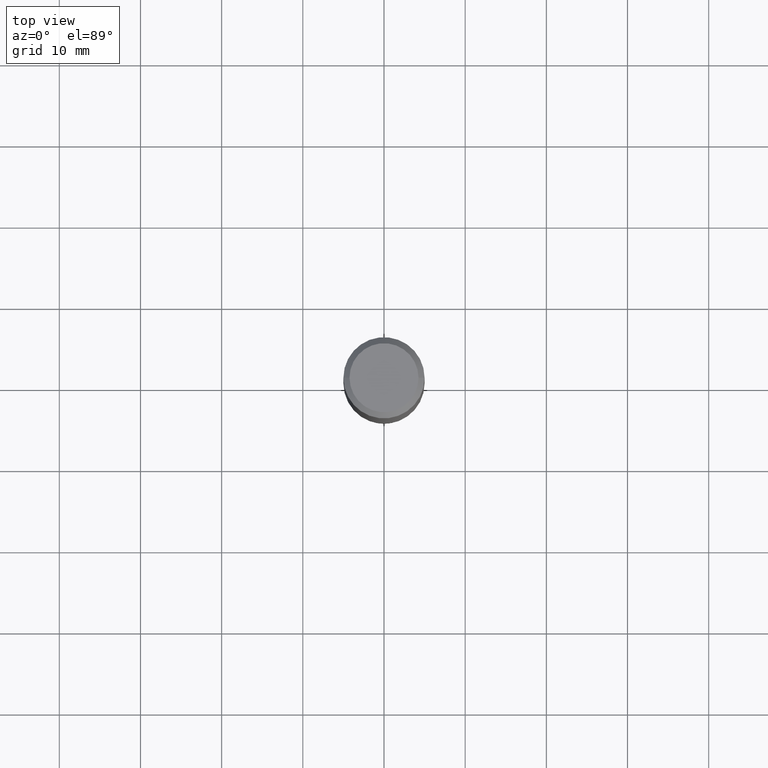
[diagram: clean part render]
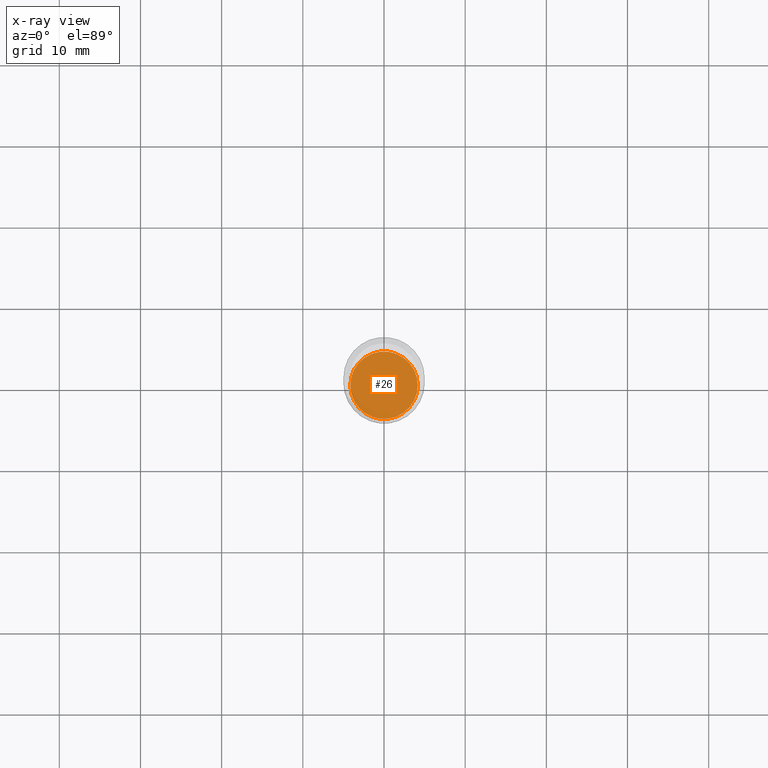
[diagram: x-ray — body ghosted, one internal face saturated and labeled with its STEP entity id]
A machine part, top view, then the same camera in x-ray: the body is ghosted and one INTERNAL B-rep face — a face not visible from any outside direction — is saturated and labeled: STEP entity #26.
In plain terms, the highlighted planar face has unit normal (-0, 0, 1).
Its self-contained STEP definition (entity closure, byte-faithful):
#5 = PLANE ( 'NONE',  #133 ) ;
#14 = DIRECTION ( 'NONE',  ( 1.000000000000000000, -6.982962677686265922E-15, 4.876176775795935793E-29 ) ) ;
#24 = ORIENTED_EDGE ( 'NONE', *, *, #326, .F. ) ;
#26 = ADVANCED_FACE ( 'NONE', ( #335 ), #5, .F. ) ;
#105 = ORIENTED_EDGE ( 'NONE', *, *, #245, .F. ) ;
#120 = DIRECTION ( 'NONE',  ( -2.438088387897960049E-29, 3.491481338843145188E-15, 1.000000000000000000 ) ) ;
#133 = AXIS2_PLACEMENT_3D ( 'NONE', #300, #120, #14 ) ;
#143 = CIRCLE ( 'NONE', #404, 0.1635500000000000009 ) ;
#162 = DIRECTION ( 'NONE',  ( -2.445468806185136597E-29, 3.491481338843145583E-15, 1.000000000000000000 ) ) ;
#238 = DIRECTION ( 'NONE',  ( 1.000000000000000000, -6.982962677686265922E-15, 0.000000000000000000 ) ) ;
#245 = EDGE_CURVE ( 'NONE', #410, #458, #311, .T. ) ;
#300 = CARTESIAN_POINT ( 'NONE',  ( 5.198822135068982087E-29, -7.422540178246643119E-15, -2.125899999999999679 ) ) ;
#302 = CARTESIAN_POINT ( 'NONE',  ( 5.198822135068982087E-29, -7.422540178246643119E-15, -2.125899999999999679 ) ) ;
#306 = DIRECTION ( 'NONE',  ( 1.000000000000000000, -6.982962677686265922E-15, 0.000000000000000000 ) ) ;
#311 = CIRCLE ( 'NONE', #359, 0.1635500000000000009 ) ;
#326 = EDGE_CURVE ( 'NONE', #458, #410, #143, .T. ) ;
#335 = FACE_OUTER_BOUND ( 'NONE', #390, .T. ) ;
#359 = AXIS2_PLACEMENT_3D ( 'NONE', #302, #462, #306 ) ;
#368 = CARTESIAN_POINT ( 'NONE',  ( 0.1635500000000000009, -8.564603724182230985E-15, -2.125899999999999679 ) ) ;
#388 = CARTESIAN_POINT ( 'NONE',  ( 5.198822135068982087E-29, -7.422540178246643119E-15, -2.125899999999999679 ) ) ;
#390 = EDGE_LOOP ( 'NONE', ( #24, #105 ) ) ;
#400 = CARTESIAN_POINT ( 'NONE',  ( -0.1635500000000000009, -6.257798306736888254E-15, -2.125899999999999679 ) ) ;
#404 = AXIS2_PLACEMENT_3D ( 'NONE', #388, #162, #238 ) ;
#410 = VERTEX_POINT ( 'NONE', #400 ) ;
#458 = VERTEX_POINT ( 'NONE', #368 ) ;
#462 = DIRECTION ( 'NONE',  ( -2.445468806185136597E-29, 3.491481338843145583E-15, 1.000000000000000000 ) ) ;